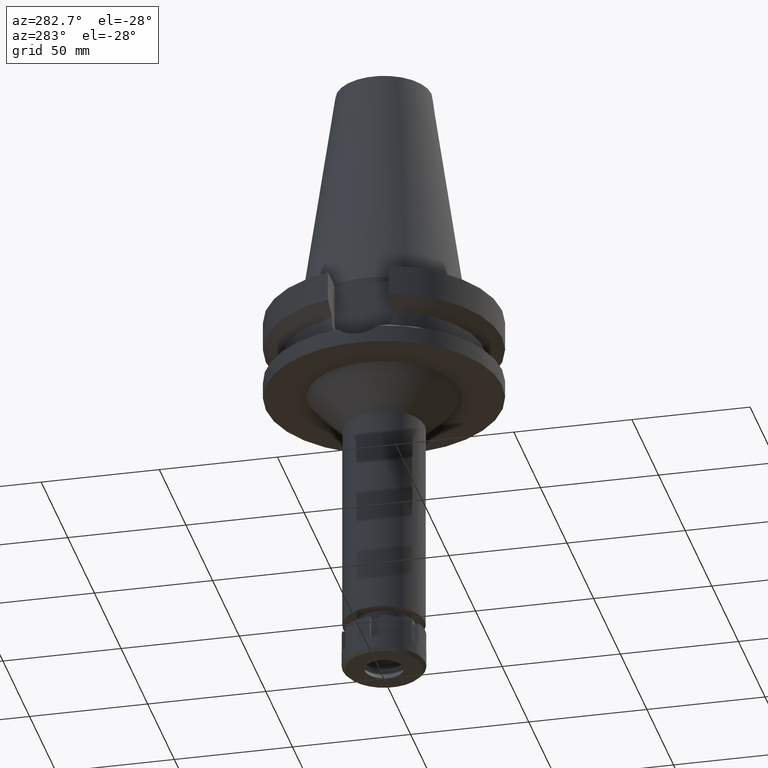
[diagram: clean part render]
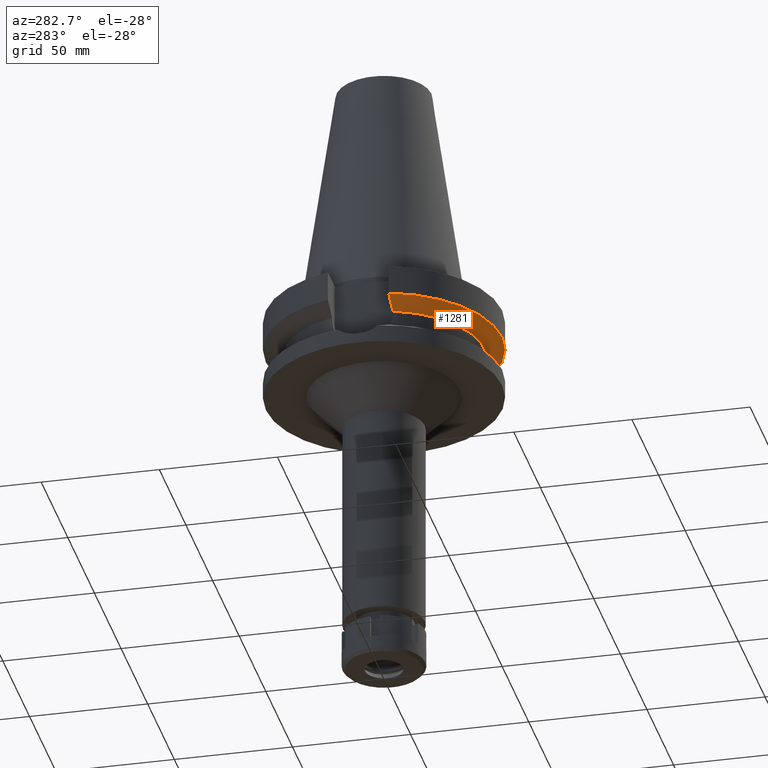
[diagram: same view with one face highlighted and labeled with its STEP entity id]
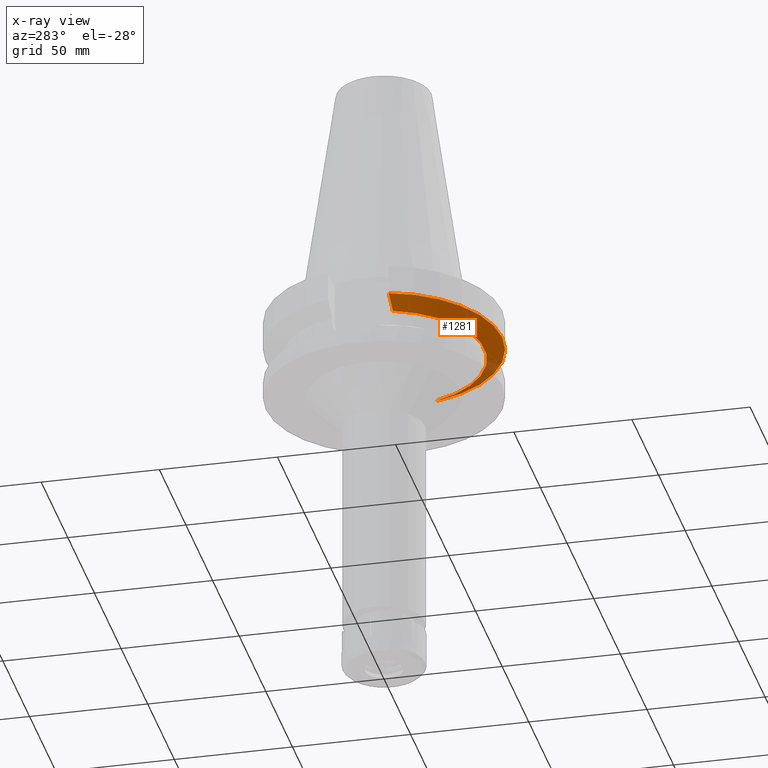
[diagram: x-ray of the same camera — body ghosted, the highlighted face saturated]
A machine part, auxiliary view. The second image highlights one B-rep face of the part: STEP entity #1281.
The next image is the same camera in x-ray: the body ghosted, the highlighted face saturated — about 12% of this face is hidden behind the body in this view.
In plain terms, the highlighted conical surface has half-angle 60 deg.
Its self-contained STEP definition (entity closure, byte-faithful):
#3 = ORIENTED_EDGE ( 'NONE', *, *, #758, .F. ) ;
#112 = DIRECTION ( 'NONE',  ( 0.0000000000000000000, -1.000000000000000000, 0.0000000000000000000 ) ) ;
#279 = B_SPLINE_CURVE_WITH_KNOTS ( 'NONE', 3,
 ( #2032, #1502, #1764, #956 ),
 .UNSPECIFIED., .F., .F.,
 ( 4, 4 ),
 ( 0.0000000000000000000, 1.000000000000000000 ),
 .UNSPECIFIED. ) ;
#289 = FACE_OUTER_BOUND ( 'NONE', #427, .T. ) ;
#427 = EDGE_LOOP ( 'NONE', ( #1120, #3, #1854, #2217 ) ) ;
#434 = CARTESIAN_POINT ( 'NONE',  ( 42.90862839481754065, -12.84999314232167578, -18.67324584529458065 ) ) ;
#641 = EDGE_CURVE ( 'NONE', #3153, #3417, #2614, .T. ) ;
#722 = CARTESIAN_POINT ( 'NONE',  ( 48.32057015392000210, -12.84999999999999964, -15.66269223573000069 ) ) ;
#758 = EDGE_CURVE ( 'NONE', #1733, #3191, #2364, .T. ) ;
#935 = CARTESIAN_POINT ( 'NONE',  ( 0.0000000000000000000, 1.006319759053999930E-14, -19.99281925464999787 ) ) ;
#956 = CARTESIAN_POINT ( 'NONE',  ( -40.51083297203000200, -12.84999657244999938, -19.99284555869999735 ) ) ;
#1069 = B_SPLINE_CURVE_WITH_KNOTS ( 'NONE', 3,
 ( #2450, #434, #3306, #722 ),
 .UNSPECIFIED., .F., .F.,
 ( 4, 4 ),
 ( 0.0000000000000000000, 1.000000000000000000 ),
 .UNSPECIFIED. ) ;
#1113 = CARTESIAN_POINT ( 'NONE',  ( -48.32056912814000071, -12.85000385727999905, -15.66265768250999990 ) ) ;
#1120 = ORIENTED_EDGE ( 'NONE', *, *, #3362, .T. ) ;
#1133 = DIRECTION ( 'NONE',  ( 0.0000000000000000000, 0.0000000000000000000, 1.000000000000000000 ) ) ;
#1168 = AXIS2_PLACEMENT_3D ( 'NONE', #935, #3578, #2073 ) ;
#1177 = CARTESIAN_POINT ( 'NONE',  ( 0.0000000000000000000, 1.006319759053999930E-14, -17.82775574519000017 ) ) ;
#1281 = ADVANCED_FACE ( 'NONE', ( #289 ), #2985, .T. ) ;
#1502 = CARTESIAN_POINT ( 'NONE',  ( -45.51179901536024630, -12.85000770991706176, -17.22986705878139446 ) ) ;
#1662 = CARTESIAN_POINT ( 'NONE',  ( 40.51083188481999997, -12.84999999999999964, -19.99281925464999787 ) ) ;
#1733 = VERTEX_POINT ( 'NONE', #1662 ) ;
#1764 = CARTESIAN_POINT ( 'NONE',  ( -42.90862489405132152, -12.84999313793018416, -18.67324780319469113 ) ) ;
#1854 = ORIENTED_EDGE ( 'NONE', *, *, #3552, .T. ) ;
#2032 = CARTESIAN_POINT ( 'NONE',  ( -48.32056912814000071, -12.85000385727999905, -15.66265768250999990 ) ) ;
#2073 = DIRECTION ( 'NONE',  ( 0.9531960443486575674, -0.3023529411764863672, 0.0000000000000000000 ) ) ;
#2121 = CARTESIAN_POINT ( 'NONE',  ( 0.0000000000000000000, 1.006319759053999930E-14, -15.66269223573000069 ) ) ;
#2162 = CARTESIAN_POINT ( 'NONE',  ( 48.32057015392000210, -12.84999999999999964, -15.66269223573000069 ) ) ;
#2217 = ORIENTED_EDGE ( 'NONE', *, *, #641, .F. ) ;
#2302 = AXIS2_PLACEMENT_3D ( 'NONE', #1177, #1133, #2605 ) ;
#2364 = CIRCLE ( 'NONE', #1168, 42.50000000000002132 ) ;
#2431 = AXIS2_PLACEMENT_3D ( 'NONE', #2121, #2712, #112 ) ;
#2450 = CARTESIAN_POINT ( 'NONE',  ( 40.51083188481999997, -12.84999999999999964, -19.99281925464999787 ) ) ;
#2605 = DIRECTION ( 'NONE',  ( 0.0000000000000000000, 1.000000000000000000, 0.0000000000000000000 ) ) ;
#2614 = CIRCLE ( 'NONE', #2431, 50.00000000000000000 ) ;
#2712 = DIRECTION ( 'NONE',  ( 0.0000000000000000000, 0.0000000000000000000, 1.000000000000000000 ) ) ;
#2985 = CONICAL_SURFACE ( 'NONE', #2302, 46.25000000000000000, 1.047197551196400456 ) ;
#3153 = VERTEX_POINT ( 'NONE', #1113 ) ;
#3191 = VERTEX_POINT ( 'NONE', #3201 ) ;
#3201 = CARTESIAN_POINT ( 'NONE',  ( -40.51083297203000200, -12.84999657244999938, -19.99284555869999735 ) ) ;
#3306 = CARTESIAN_POINT ( 'NONE',  ( 45.51179445178392058, -12.85000771150626164, -17.22986957498880045 ) ) ;
#3362 = EDGE_CURVE ( 'NONE', #3153, #3191, #279, .T. ) ;
#3417 = VERTEX_POINT ( 'NONE', #2162 ) ;
#3552 = EDGE_CURVE ( 'NONE', #1733, #3417, #1069, .T. ) ;
#3578 = DIRECTION ( 'NONE',  ( 0.0000000000000000000, 0.0000000000000000000, -1.000000000000000000 ) ) ;